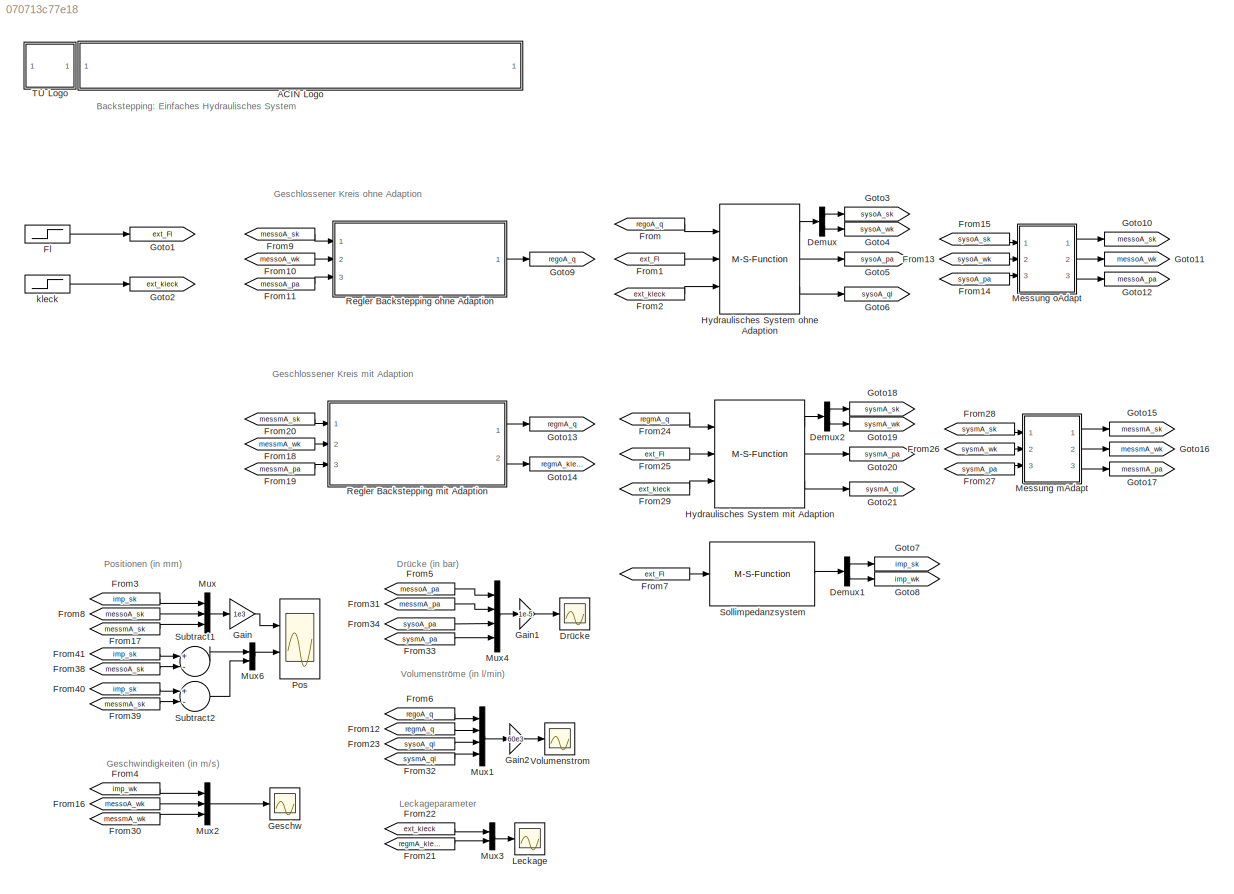
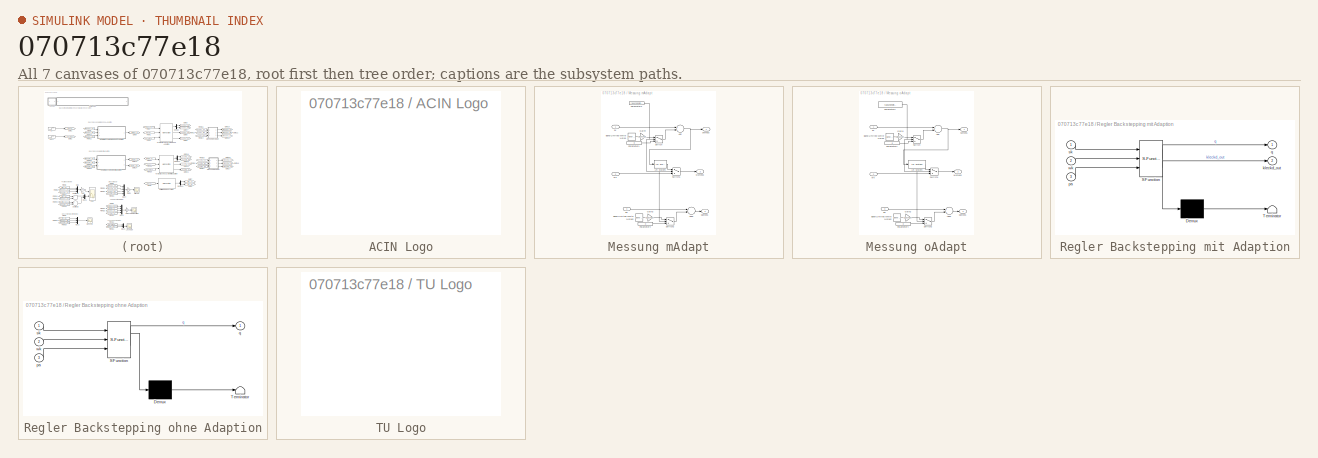
[diagram: thumbnail index - all 7 canvases of the model, root first then tree order]
MODEL slx_070713c77e18
KIND model
CONFIG AbsTol = 1e-5
CONFIG FixedStep = auto
CONFIG InitFcn = Parameter_hydraulisches_System\n
CONFIG MaxStep = auto
CONFIG MinStep = auto
CONFIG RelTol = 1e-6
CONFIG SampleTimeConstraint = Unconstrained
CONFIG Solver = ode15s
CONFIG SolverMode = Auto
CONFIG SolverName = ode15s
CONFIG StartTime = 0.0
CONFIG StopTime = 10
BLOCK [SubSystem] ACIN Logo
  Ports = []
  RequestExecContextInheritance = off
  UserDataPersistent = on
  Variant = off
BLOCK [Demux] Demux
  DisplayOption = bar
  Outputs = 2
  Ports = [1, 2]
BLOCK [Demux] Demux1
  DisplayOption = bar
  Outputs = 2
  Ports = [1, 2]
BLOCK [Demux] Demux2
  DisplayOption = bar
  Outputs = 2
  Ports = [1, 2]
BLOCK [Scope] Drücke
  Ports = [1]
  ScopeSpecificationString = C++SS(StrPVP('Location','[5, 52, 1285, 993]'),StrPVP('Open','off'),MxPVP('AxesTitles',24,'struct(''axes1'',''%<SignalLabel>'')'),StrPVP('ShowLegends','off'),StrPVP('SaveName','ScopeData2'),StrPVP('DataFormat','StructureWithTime'),StrPVP('LimitDataPoints','off'),StrPVP('BlockParamSampleTime','0'),StrPVP('Decimation','1'),StrPVP('BlockParamSampleInput','off'))
BLOCK [Step] Fl
  After = 1e4
  SampleTime = 0
  Time = 3
BLOCK [From] From
  CloseFcn = tagdialog Close
  GotoTag = regoA_q
  TagVisibility = global
BLOCK [From] From1
  CloseFcn = tagdialog Close
  GotoTag = ext_Fl
  TagVisibility = global
BLOCK [From] From10
  CloseFcn = tagdialog Close
  GotoTag = messoA_wk
  TagVisibility = global
BLOCK [From] From11
  CloseFcn = tagdialog Close
  GotoTag = messoA_pa
  TagVisibility = global
BLOCK [From] From12
  CloseFcn = tagdialog Close
  GotoTag = regmA_q
  TagVisibility = global
BLOCK [From] From13
  CloseFcn = tagdialog Close
  GotoTag = sysoA_wk
  TagVisibility = global
BLOCK [From] From14
  CloseFcn = tagdialog Close
  GotoTag = sysoA_pa
  TagVisibility = global
BLOCK [From] From15
  CloseFcn = tagdialog Close
  GotoTag = sysoA_sk
  TagVisibility = global
BLOCK [From] From16
  CloseFcn = tagdialog Close
  GotoTag = messoA_wk
  TagVisibility = global
BLOCK [From] From17
  CloseFcn = tagdialog Close
  GotoTag = messmA_sk
  TagVisibility = global
BLOCK [From] From18
  CloseFcn = tagdialog Close
  GotoTag = messmA_wk
  TagVisibility = global
BLOCK [From] From19
  CloseFcn = tagdialog Close
  GotoTag = messmA_pa
  TagVisibility = global
BLOCK [From] From2
  CloseFcn = tagdialog Close
  GotoTag = ext_kleck
  TagVisibility = global
BLOCK [From] From20
  CloseFcn = tagdialog Close
  GotoTag = messmA_sk
  TagVisibility = global
BLOCK [From] From21
  CloseFcn = tagdialog Close
  GotoTag = regmA_kleckd
  TagVisibility = global
BLOCK [From] From22
  CloseFcn = tagdialog Close
  GotoTag = ext_kleck
  TagVisibility = global
BLOCK [From] From23
  CloseFcn = tagdialog Close
  GotoTag = sysoA_ql
  TagVisibility = global
BLOCK [From] From24
  CloseFcn = tagdialog Close
  GotoTag = regmA_q
  TagVisibility = global
BLOCK [From] From25
  CloseFcn = tagdialog Close
  GotoTag = ext_Fl
  TagVisibility = global
BLOCK [From] From26
  CloseFcn = tagdialog Close
  GotoTag = sysmA_wk
  TagVisibility = global
BLOCK [From] From27
  CloseFcn = tagdialog Close
  GotoTag = sysmA_pa
  TagVisibility = global
BLOCK [From] From28
  CloseFcn = tagdialog Close
  GotoTag = sysmA_sk
  TagVisibility = global
BLOCK [From] From29
  CloseFcn = tagdialog Close
  GotoTag = ext_kleck
  TagVisibility = global
BLOCK [From] From3
  CloseFcn = tagdialog Close
  GotoTag = imp_sk
  TagVisibility = global
BLOCK [From] From30
  CloseFcn = tagdialog Close
  GotoTag = messmA_wk
  TagVisibility = global
BLOCK [From] From31
  CloseFcn = tagdialog Close
  GotoTag = messmA_pa
  TagVisibility = global
BLOCK [From] From32
  CloseFcn = tagdialog Close
  GotoTag = sysmA_ql
  TagVisibility = global
BLOCK [From] From33
  CloseFcn = tagdialog Close
  GotoTag = sysmA_pa
  TagVisibility = global
BLOCK [From] From34
  CloseFcn = tagdialog Close
  GotoTag = sysoA_pa
  TagVisibility = global
BLOCK [From] From38
  CloseFcn = tagdialog Close
  GotoTag = messoA_sk
  TagVisibility = global
BLOCK [From] From39
  CloseFcn = tagdialog Close
  GotoTag = messmA_sk
  TagVisibility = global
BLOCK [From] From4
  CloseFcn = tagdialog Close
  GotoTag = imp_wk
  TagVisibility = global
BLOCK [From] From40
  CloseFcn = tagdialog Close
  GotoTag = imp_sk
  TagVisibility = global
BLOCK [From] From41
  CloseFcn = tagdialog Close
  GotoTag = imp_sk
  TagVisibility = global
BLOCK [From] From5
  CloseFcn = tagdialog Close
  GotoTag = messoA_pa
  TagVisibility = global
BLOCK [From] From6
  CloseFcn = tagdialog Close
  GotoTag = regoA_q
  TagVisibility = global
BLOCK [From] From7
  CloseFcn = tagdialog Close
  GotoTag = ext_Fl
  TagVisibility = global
BLOCK [From] From8
  CloseFcn = tagdialog Close
  GotoTag = messoA_sk
  TagVisibility = global
BLOCK [From] From9
  CloseFcn = tagdialog Close
  GotoTag = messoA_sk
  TagVisibility = global
BLOCK [Gain] Gain
  Gain = 1e3
  OutDataTypeStr = Inherit: Inherit via internal rule
  ParamDataTypeStr = Inherit: Inherit via internal rule
  SaturateOnIntegerOverflow = off
BLOCK [Gain] Gain1
  Gain = 1e-5
  OutDataTypeStr = Inherit: Inherit via internal rule
  ParamDataTypeStr = Inherit: Inherit via internal rule
  SaturateOnIntegerOverflow = off
BLOCK [Gain] Gain2
  Gain = 60e3
  OutDataTypeStr = Inherit: Inherit via internal rule
  ParamDataTypeStr = Inherit: Inherit via internal rule
  SaturateOnIntegerOverflow = off
BLOCK [Scope] Geschw
  Ports = [1]
  ScopeSpecificationString = C++SS(StrPVP('Location','[5, 52, 1285, 993]'),StrPVP('Open','off'),MxPVP('AxesTitles',24,'struct(''axes1'',''%<SignalLabel>'')'),StrPVP('ShowLegends','off'),StrPVP('SaveName','ScopeData1'),StrPVP('DataFormat','StructureWithTime'),StrPVP('LimitDataPoints','off'),StrPVP('BlockParamSampleTime','0'),StrPVP('Decimation','1'),StrPVP('BlockParamSampleInput','off'))
BLOCK [Goto] Goto1
  GotoTag = ext_Fl
  TagVisibility = global
BLOCK [Goto] Goto10
  GotoTag = messoA_sk
  TagVisibility = global
BLOCK [Goto] Goto11
  GotoTag = messoA_wk
  TagVisibility = global
BLOCK [Goto] Goto12
  GotoTag = messoA_pa
  TagVisibility = global
BLOCK [Goto] Goto13
  GotoTag = regmA_q
  TagVisibility = global
BLOCK [Goto] Goto14
  GotoTag = regmA_kleckd
  TagVisibility = global
BLOCK [Goto] Goto15
  GotoTag = messmA_sk
  TagVisibility = global
BLOCK [Goto] Goto16
  GotoTag = messmA_wk
  TagVisibility = global
BLOCK [Goto] Goto17
  GotoTag = messmA_pa
  TagVisibility = global
BLOCK [Goto] Goto18
  GotoTag = sysmA_sk
  TagVisibility = global
BLOCK [Goto] Goto19
  GotoTag = sysmA_wk
  TagVisibility = global
BLOCK [Goto] Goto2
  GotoTag = ext_kleck
  TagVisibility = global
BLOCK [Goto] Goto20
  GotoTag = sysmA_pa
  TagVisibility = global
BLOCK [Goto] Goto21
  GotoTag = sysmA_ql
  TagVisibility = global
BLOCK [Goto] Goto3
  GotoTag = sysoA_sk
  TagVisibility = global
BLOCK [Goto] Goto4
  GotoTag = sysoA_wk
  TagVisibility = global
BLOCK [Goto] Goto5
  GotoTag = sysoA_pa
  TagVisibility = global
BLOCK [Goto] Goto6
  GotoTag = sysoA_ql
  TagVisibility = global
BLOCK [Goto] Goto7
  GotoTag = imp_sk
  TagVisibility = global
BLOCK [Goto] Goto8
  GotoTag = imp_wk
  TagVisibility = global
BLOCK [Goto] Goto9
  GotoTag = regoA_q
  TagVisibility = global
BLOCK [M-S-Function] Hydraulisches System mit Adaption 
  FunctionName = Modell_hydraulisches_System_S_m2
  Parameters = Aa_par,Ab_par,V0a_par,pb_par,beta_par,dk_par,m_par,sk0_par,wk0_par,pa0_par
  Ports = [3, 3]
BLOCK [M-S-Function] Hydraulisches System ohne Adaption
  FunctionName = Modell_hydraulisches_System_S_m2
  Parameters = Aa_par,Ab_par,V0a_par,pb_par,beta_par,dk_par,m_par,sk0_par,wk0_par,pa0_par
  Ports = [3, 3]
BLOCK [Scope] Leckage
  Ports = [1]
  ScopeSpecificationString = Simulink.scopes.TimeScopeBlockCfg('CurrentConfiguration', extmgr.ConfigurationSet(extmgr.Configuration('Core','General UI',true),extmgr.Configuration('Core','Source UI',true),extmgr.Configuration('Sources','WiredSimulink',true,'DataLoggingVariableName','ScopeData8','DataLoggingSaveFormat','StructureWithTime','DataLoggingDecimation','1','DataLoggingDecimateData',true),extmgr.Configuration('Visuals'...<+1656ch>
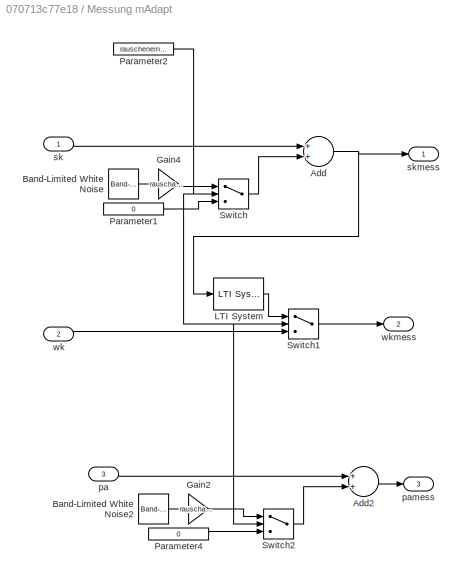
BLOCK [SubSystem] Messung mAdapt
  Ports = [3, 3]
  RequestExecContextInheritance = off
  Variant = off
BLOCK [Sum] Messung mAdapt/Add
  InputSameDT = off
  OutDataTypeStr = Inherit: Inherit via internal rule
  Ports = [2, 1]
  SaturateOnIntegerOverflow = off
BLOCK [Sum] Messung mAdapt/Add2
  InputSameDT = off
  OutDataTypeStr = Inherit: Inherit via internal rule
  Ports = [2, 1]
  SaturateOnIntegerOverflow = off
BLOCK [Reference] Messung mAdapt/Band-Limited White Noise  REF=simulink/Sources/Band-Limited
White Noise
  Ports = [0, 1]
  SourceBlock = simulink/Sources/Band-Limited\nWhite Noise
  SourceType = Band-Limited White Noise.
BLOCK [Reference] Messung mAdapt/Band-Limited White Noise2  REF=simulink/Sources/Band-Limited
White Noise
  Ports = [0, 1]
  SourceBlock = simulink/Sources/Band-Limited\nWhite Noise
  SourceType = Band-Limited White Noise.
BLOCK [Gain] Messung mAdapt/Gain2
  Gain = rauschampl_pa
  OutDataTypeStr = Inherit: Inherit via internal rule
  ParamDataTypeStr = Inherit: Inherit via internal rule
  SaturateOnIntegerOverflow = off
BLOCK [Gain] Messung mAdapt/Gain4
  Gain = rauschampl_sk
  OutDataTypeStr = Inherit: Inherit via internal rule
  ParamDataTypeStr = Inherit: Inherit via internal rule
  SaturateOnIntegerOverflow = off
BLOCK [Reference] Messung mAdapt/LTI System  REF=cstblocks/LTI System
  Ports = [1, 1]
  SourceBlock = cstblocks/LTI System
  SourceType = LTI Block
BLOCK [Constant] Messung mAdapt/Parameter1
  Value = 0
  VectorParams1D = off
BLOCK [Constant] Messung mAdapt/Parameter2
  Value = rauschenein_par
  VectorParams1D = off
BLOCK [Constant] Messung mAdapt/Parameter4
  Value = 0
  VectorParams1D = off
BLOCK [Switch] Messung mAdapt/Switch
  InputSameDT = off
  SaturateOnIntegerOverflow = off
  Threshold = 0.5
BLOCK [Switch] Messung mAdapt/Switch1
  InputSameDT = off
  SaturateOnIntegerOverflow = off
  Threshold = 0.5
BLOCK [Switch] Messung mAdapt/Switch2
  InputSameDT = off
  SaturateOnIntegerOverflow = off
  Threshold = 0.5
BLOCK [Inport] Messung mAdapt/pa
  IconDisplay = Port number
  Port = 3
BLOCK [Outport] Messung mAdapt/pamess
  IconDisplay = Port number
  Port = 3
BLOCK [Inport] Messung mAdapt/sk
  IconDisplay = Port number
BLOCK [Outport] Messung mAdapt/skmess
  IconDisplay = Port number
BLOCK [Inport] Messung mAdapt/wk
  IconDisplay = Port number
  Port = 2
BLOCK [Outport] Messung mAdapt/wkmess
  IconDisplay = Port number
  Port = 2
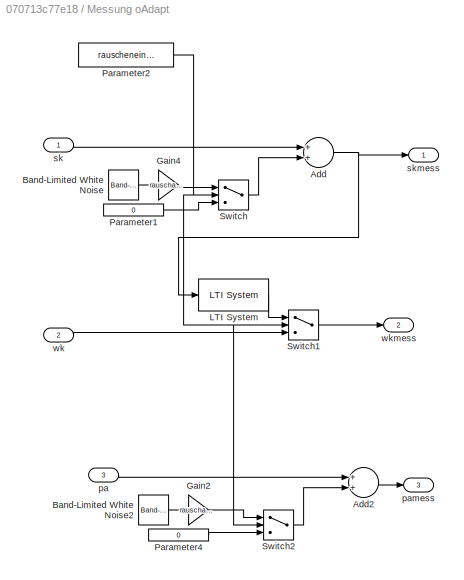
BLOCK [SubSystem] Messung oAdapt
  Ports = [3, 3]
  RequestExecContextInheritance = off
  Variant = off
BLOCK [Sum] Messung oAdapt/Add
  InputSameDT = off
  OutDataTypeStr = Inherit: Inherit via internal rule
  Ports = [2, 1]
  SaturateOnIntegerOverflow = off
BLOCK [Sum] Messung oAdapt/Add2
  InputSameDT = off
  OutDataTypeStr = Inherit: Inherit via internal rule
  Ports = [2, 1]
  SaturateOnIntegerOverflow = off
BLOCK [Reference] Messung oAdapt/Band-Limited White Noise  REF=simulink/Sources/Band-Limited
White Noise
  Ports = [0, 1]
  SourceBlock = simulink/Sources/Band-Limited\nWhite Noise
  SourceType = Band-Limited White Noise.
BLOCK [Reference] Messung oAdapt/Band-Limited White Noise2  REF=simulink/Sources/Band-Limited
White Noise
  Ports = [0, 1]
  SourceBlock = simulink/Sources/Band-Limited\nWhite Noise
  SourceType = Band-Limited White Noise.
BLOCK [Gain] Messung oAdapt/Gain2
  Gain = rauschampl_pa
  OutDataTypeStr = Inherit: Inherit via internal rule
  ParamDataTypeStr = Inherit: Inherit via internal rule
  SaturateOnIntegerOverflow = off
BLOCK [Gain] Messung oAdapt/Gain4
  Gain = rauschampl_sk
  OutDataTypeStr = Inherit: Inherit via internal rule
  ParamDataTypeStr = Inherit: Inherit via internal rule
  SaturateOnIntegerOverflow = off
BLOCK [Reference] Messung oAdapt/LTI System  REF=cstblocks/LTI System
  Ports = [1, 1]
  SourceBlock = cstblocks/LTI System
  SourceType = LTI Block
BLOCK [Constant] Messung oAdapt/Parameter1
  Value = 0
  VectorParams1D = off
BLOCK [Constant] Messung oAdapt/Parameter2
  Value = rauschenein_par
  VectorParams1D = off
BLOCK [Constant] Messung oAdapt/Parameter4
  Value = 0
  VectorParams1D = off
BLOCK [Switch] Messung oAdapt/Switch
  InputSameDT = off
  SaturateOnIntegerOverflow = off
  Threshold = 0.5
BLOCK [Switch] Messung oAdapt/Switch1
  InputSameDT = off
  SaturateOnIntegerOverflow = off
  Threshold = 0.5
BLOCK [Switch] Messung oAdapt/Switch2
  InputSameDT = off
  SaturateOnIntegerOverflow = off
  Threshold = 0.5
BLOCK [Inport] Messung oAdapt/pa
  IconDisplay = Port number
  Port = 3
BLOCK [Outport] Messung oAdapt/pamess
  IconDisplay = Port number
  Port = 3
BLOCK [Inport] Messung oAdapt/sk
  IconDisplay = Port number
BLOCK [Outport] Messung oAdapt/skmess
  IconDisplay = Port number
BLOCK [Inport] Messung oAdapt/wk
  IconDisplay = Port number
  Port = 2
BLOCK [Outport] Messung oAdapt/wkmess
  IconDisplay = Port number
  Port = 2
BLOCK [Mux] Mux
  DisplayOption = bar
  Inputs = 3
  Ports = [3, 1]
BLOCK [Mux] Mux1
  DisplayOption = bar
  Ports = [4, 1]
BLOCK [Mux] Mux2
  DisplayOption = bar
  Inputs = 3
  Ports = [3, 1]
BLOCK [Mux] Mux3
  DisplayOption = bar
  Inputs = 2
  Ports = [2, 1]
BLOCK [Mux] Mux4
  DisplayOption = bar
  Ports = [4, 1]
BLOCK [Mux] Mux6
  DisplayOption = bar
  Inputs = 2
  Ports = [2, 1]
BLOCK [Scope] Pos
  NumInputPorts = 2
  Ports = [2]
  ScopeSpecificationString = C++SS(StrPVP('Location','[5, 64, 1285, 966]'),StrPVP('Open','off'),StrPVP('ZoomMode','yonly'),MxPVP('AxesTitles',24,'struct(''axes1'',''Position'',''axes2'',''Regelfehler'')'),MxPVP('ScopeGraphics',28,'struct(''FigureColor'',''[0.5 0.5 0.5]'',''AxesColor'',''[0 0 0]'',''AxesTickColor'',''[1 1 1]'',''LineColors'',''[1 1 0;1 0 1;0 1 1;1 0 0;0 1 0;0 0 1]'',''LineStyles'',''-|-|-|-|-|-'',''LineWidths'...<+343ch>
BLOCK [SubSystem] Regler Backstepping mit Adaption
  ErrorFcn = Stateflow.Translate.translate
  PermitHierarchicalResolution = ExplicitOnly
  Ports = [3, 2]
  RequestExecContextInheritance = off
  SFBlockType = MATLAB Function
  TreatAsAtomicUnit = on
  Variant = off
BLOCK [Demux] Regler Backstepping mit Adaption/ Demux 
  Outputs = 1
  Ports = [1, 1]
BLOCK [S-Function] Regler Backstepping mit Adaption/ SFunction 
  EnableBusSupport = on
  FunctionName = sf_sfun
  Parameters = parImp,parRegA,parSys
  PortCounts = [3 3]
  Ports = [3, 3]
  SFunctionDeploymentMode = off
  Tag = Stateflow S-Function Sim_Modell_hydraulisches_System 1
BLOCK [Terminator] Regler Backstepping mit Adaption/ Terminator 
BLOCK [Outport] Regler Backstepping mit Adaption/kleckd_out
  IconDisplay = Port number
  Port = 2
BLOCK [Inport] Regler Backstepping mit Adaption/pa
  IconDisplay = Port number
  Port = 3
BLOCK [Outport] Regler Backstepping mit Adaption/q
  IconDisplay = Port number
BLOCK [Inport] Regler Backstepping mit Adaption/sk
  IconDisplay = Port number
BLOCK [Inport] Regler Backstepping mit Adaption/wk
  IconDisplay = Port number
  Port = 2
BLOCK [SubSystem] Regler Backstepping ohne Adaption
  ErrorFcn = Stateflow.Translate.translate
  PermitHierarchicalResolution = ExplicitOnly
  Ports = [3, 1]
  RequestExecContextInheritance = off
  SFBlockType = MATLAB Function
  TreatAsAtomicUnit = on
  Variant = off
BLOCK [Demux] Regler Backstepping ohne Adaption/ Demux 
  Outputs = 1
  Ports = [1, 1]
BLOCK [S-Function] Regler Backstepping ohne Adaption/ SFunction 
  EnableBusSupport = on
  FunctionName = sf_sfun
  Parameters = parImp,parRegoA,parSys
  PortCounts = [3 2]
  Ports = [3, 2]
  SFunctionDeploymentMode = off
  Tag = Stateflow S-Function Sim_Modell_hydraulisches_System 2
BLOCK [Terminator] Regler Backstepping ohne Adaption/ Terminator 
BLOCK [Inport] Regler Backstepping ohne Adaption/pa
  IconDisplay = Port number
  Port = 3
BLOCK [Outport] Regler Backstepping ohne Adaption/q
  IconDisplay = Port number
BLOCK [Inport] Regler Backstepping ohne Adaption/sk
  IconDisplay = Port number
BLOCK [Inport] Regler Backstepping ohne Adaption/wk
  IconDisplay = Port number
  Port = 2
BLOCK [M-S-Function] Sollimpedanzsystem
  FunctionName = Modell_Sollimpedanz_System_S_m2
  Parameters = m_par,c1I_par,c3I_par,c0I_par,skImax_par,numFeder_par,d1I_par,skI0_par,wkI0_par
  Ports = [1, 1]
BLOCK [Sum] Subtract1
  InputSameDT = off
  Inputs = +-
  OutDataTypeStr = Inherit: Inherit via internal rule
  Ports = [2, 1]
  SaturateOnIntegerOverflow = off
BLOCK [Sum] Subtract2
  InputSameDT = off
  Inputs = +-
  OutDataTypeStr = Inherit: Inherit via internal rule
  Ports = [2, 1]
  SaturateOnIntegerOverflow = off
BLOCK [SubSystem] TU Logo
  Ports = []
  RequestExecContextInheritance = off
  UserDataPersistent = on
  Variant = off
BLOCK [Scope] Volumenstrom
  Ports = [1]
  ScopeSpecificationString = C++SS(StrPVP('Location','[5, 52, 1285, 993]'),StrPVP('Open','off'),MxPVP('AxesTitles',24,'struct(''axes1'',''%<SignalLabel>'')'),StrPVP('ShowLegends','off'),StrPVP('YMin','-150'),StrPVP('YMax','100'),StrPVP('SaveName','ScopeData3'),StrPVP('DataFormat','StructureWithTime'),StrPVP('LimitDataPoints','off'),StrPVP('BlockParamSampleTime','0'),StrPVP('Decimation','1'),StrPVP('BlockParamSampleInput','off...<+3ch>
BLOCK [Step] kleck
  After = parSys.klecknom
  Before = parSys.klecknom*1
  SampleTime = 0
ANNOTATION (root): Backstepping: Einfaches Hydraulisches System
ANNOTATION (root): Drücke (in bar)
ANNOTATION (root): Geschlossener Kreis mit Adaption
ANNOTATION (root): Geschlossener Kreis ohne Adaption
ANNOTATION (root): Geschwindigkeiten (in m/s)
ANNOTATION (root): Leckageparameter
ANNOTATION (root): Positionen (in mm)
ANNOTATION (root): Volumenströme (in l/min)
LINE Demux1:1 -> Goto7:1
LINE Demux1:2 -> Goto8:1
LINE Demux2:1 -> Goto18:1
LINE Demux2:2 -> Goto19:1
LINE Demux:1 -> Goto3:1
LINE Demux:2 -> Goto4:1
LINE Fl:1 -> Goto1:1
LINE From10:1 -> Regler Backstepping ohne Adaption:2
LINE From11:1 -> Regler Backstepping ohne Adaption:3
LINE From12:1 -> Mux1:2
LINE From13:1 -> Messung oAdapt:2
LINE From14:1 -> Messung oAdapt:3
LINE From15:1 -> Messung oAdapt:1
LINE From16:1 -> Mux2:2
LINE From17:1 -> Mux:3
LINE From18:1 -> Regler Backstepping mit Adaption:2
LINE From19:1 -> Regler Backstepping mit Adaption:3
LINE From1:1 -> Hydraulisches System ohne Adaption:2
LINE From20:1 -> Regler Backstepping mit Adaption:1
LINE From21:1 -> Mux3:2
LINE From22:1 -> Mux3:1
LINE From23:1 -> Mux1:3
LINE From24:1 -> Hydraulisches System mit Adaption :1
LINE From25:1 -> Hydraulisches System mit Adaption :2
LINE From26:1 -> Messung mAdapt:2
LINE From27:1 -> Messung mAdapt:3
LINE From28:1 -> Messung mAdapt:1
LINE From29:1 -> Hydraulisches System mit Adaption :3
LINE From2:1 -> Hydraulisches System ohne Adaption:3
LINE From30:1 -> Mux2:3
LINE From31:1 -> Mux4:2
LINE From32:1 -> Mux1:4
LINE From33:1 -> Mux4:4
LINE From34:1 -> Mux4:3
LINE From38:1 -> Subtract1:2
LINE From39:1 -> Subtract2:2
LINE From3:1 -> Mux:1
LINE From40:1 -> Subtract2:1
LINE From41:1 -> Subtract1:1
LINE From4:1 -> Mux2:1
LINE From5:1 -> Mux4:1
LINE From6:1 -> Mux1:1
LINE From7:1 -> Sollimpedanzsystem:1
LINE From8:1 -> Mux:2
LINE From9:1 -> Regler Backstepping ohne Adaption:1
LINE From:1 -> Hydraulisches System ohne Adaption:1
LINE Gain1:1 -> Drücke:1
LINE Gain2:1 -> Volumenstrom:1
LINE Gain:1 -> Pos:1
LINE Hydraulisches System mit Adaption :1 -> Demux2:1
LINE Hydraulisches System mit Adaption :2 -> Goto20:1
LINE Hydraulisches System mit Adaption :3 -> Goto21:1
LINE Hydraulisches System ohne Adaption:1 -> Demux:1
LINE Hydraulisches System ohne Adaption:2 -> Goto5:1
LINE Hydraulisches System ohne Adaption:3 -> Goto6:1
LINE Messung mAdapt/Add2:1 -> Messung mAdapt/pamess:1
NET Messung mAdapt/Add:1 -> Messung mAdapt/LTI System:1, Messung mAdapt/skmess:1
LINE Messung mAdapt/Band-Limited White Noise2:1 -> Messung mAdapt/Gain2:1
LINE Messung mAdapt/Band-Limited White Noise:1 -> Messung mAdapt/Gain4:1
LINE Messung mAdapt/Gain2:1 -> Messung mAdapt/Switch2:1
LINE Messung mAdapt/Gain4:1 -> Messung mAdapt/Switch:1
LINE Messung mAdapt/LTI System:1 -> Messung mAdapt/Switch1:1
LINE Messung mAdapt/Parameter1:1 -> Messung mAdapt/Switch:3
NET Messung mAdapt/Parameter2:1 -> Messung mAdapt/Switch1:2, Messung mAdapt/Switch2:2, Messung mAdapt/Switch:2
LINE Messung mAdapt/Parameter4:1 -> Messung mAdapt/Switch2:3
LINE Messung mAdapt/Switch1:1 -> Messung mAdapt/wkmess:1
LINE Messung mAdapt/Switch2:1 -> Messung mAdapt/Add2:2
LINE Messung mAdapt/Switch:1 -> Messung mAdapt/Add:2
LINE Messung mAdapt/pa:1 -> Messung mAdapt/Add2:1
LINE Messung mAdapt/sk:1 -> Messung mAdapt/Add:1
LINE Messung mAdapt/wk:1 -> Messung mAdapt/Switch1:3
LINE Messung mAdapt:1 -> Goto15:1
LINE Messung mAdapt:2 -> Goto16:1
LINE Messung mAdapt:3 -> Goto17:1
LINE Messung oAdapt/Add2:1 -> Messung oAdapt/pamess:1
NET Messung oAdapt/Add:1 -> Messung oAdapt/LTI System:1, Messung oAdapt/skmess:1
LINE Messung oAdapt/Band-Limited White Noise2:1 -> Messung oAdapt/Gain2:1
LINE Messung oAdapt/Band-Limited White Noise:1 -> Messung oAdapt/Gain4:1
LINE Messung oAdapt/Gain2:1 -> Messung oAdapt/Switch2:1
LINE Messung oAdapt/Gain4:1 -> Messung oAdapt/Switch:1
LINE Messung oAdapt/LTI System:1 -> Messung oAdapt/Switch1:1
LINE Messung oAdapt/Parameter1:1 -> Messung oAdapt/Switch:3
NET Messung oAdapt/Parameter2:1 -> Messung oAdapt/Switch1:2, Messung oAdapt/Switch2:2, Messung oAdapt/Switch:2
LINE Messung oAdapt/Parameter4:1 -> Messung oAdapt/Switch2:3
LINE Messung oAdapt/Switch1:1 -> Messung oAdapt/wkmess:1
LINE Messung oAdapt/Switch2:1 -> Messung oAdapt/Add2:2
LINE Messung oAdapt/Switch:1 -> Messung oAdapt/Add:2
LINE Messung oAdapt/pa:1 -> Messung oAdapt/Add2:1
LINE Messung oAdapt/sk:1 -> Messung oAdapt/Add:1
LINE Messung oAdapt/wk:1 -> Messung oAdapt/Switch1:3
LINE Messung oAdapt:1 -> Goto10:1
LINE Messung oAdapt:2 -> Goto11:1
LINE Messung oAdapt:3 -> Goto12:1
LINE Mux1:1 -> Gain2:1
LINE Mux2:1 -> Geschw:1
LINE Mux3:1 -> Leckage:1
LINE Mux4:1 -> Gain1:1
LINE Mux6:1 -> Pos:2
LINE Mux:1 -> Gain:1
LINE Regler Backstepping mit Adaption:1 -> Goto13:1
LINE Regler Backstepping mit Adaption:2 -> Goto14:1
LINE Regler Backstepping ohne Adaption:1 -> Goto9:1
LINE Sollimpedanzsystem:1 -> Demux1:1
LINE Subtract1:1 -> Mux6:1
LINE Subtract2:1 -> Mux6:2
LINE kleck:1 -> Goto2:1
note: NET lines group one-source signal fan-out (src -> all destinations, sorted); 1:1 wires keep LINE
CHART Regler Backstepping mit Adaption states=1 transitions=1
  STATE_LABEL 'eML_blk_kernel()'
  STATE_LABEL 'SCRIPT:\nfunction [q,kleckd_out]  = Backstepping_mit_Adapt(sk,wk,pa,parSys,parImp, parRegA)\n% Funktion zur Implementierung eines Backsteppingreglers mit\n% Adaption für einfaches hydraulisches System\n\n\n% Initialisierung des diskreten Integrator Zustandes\npersistent kleckd\nif isempty(kleckd) kleckd = parSys.klecknom; end\n\n% Zuweisung der Parameter\n\nm = parSys.m;\ndk = parSys.dk;\nbeta = parSys.beta;\nAa...<+1275ch>'
CHART Regler Backstepping ohne Adaption states=1 transitions=1
  STATE_LABEL 'eML_blk_kernel()'
  STATE_LABEL 'SCRIPT:\nfunction q  = Backstepping_ohne_Adapt(sk,wk,pa,parSys, parRegoA, parImp)\n% Funktion zur Implementierung eines Backsteppingreglers ohne\n% Adaption für einfaches hydraulisches System\n\n% Zuweisung der Parameter\n\nm = parSys.m;\ndk = parSys.dk;\nbeta = parSys.beta;\nAa = parSys.Aa;\nAb = parSys.Ab;\nV0a = parSys.V0a;\npb = parSys.pb;\nklecknom = parSys.klecknom;\n\nc1I = parImp.c1I;\nc3I = parImp.c3I;\nc0...<+899ch>'
